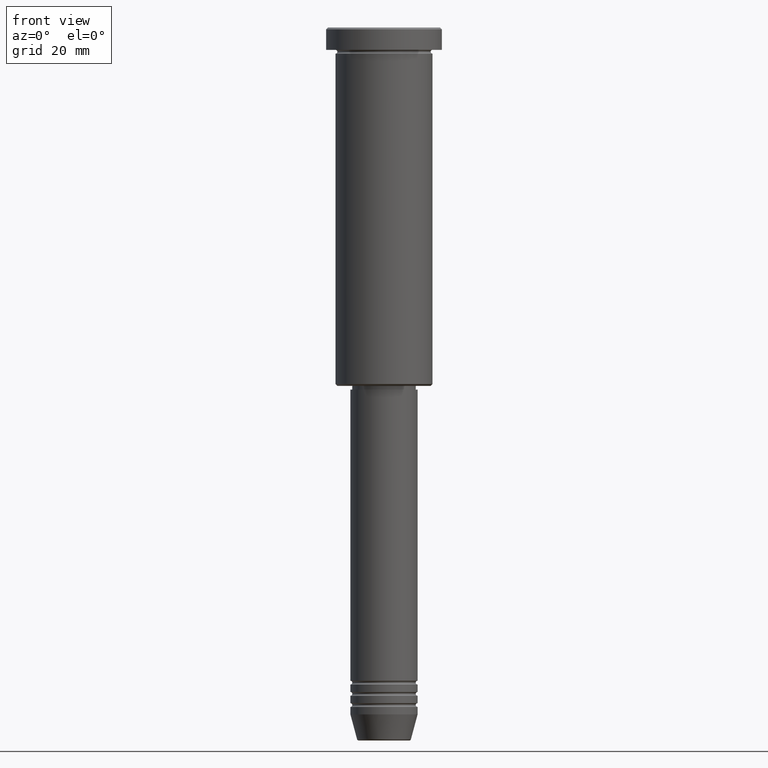
[diagram: clean part render]
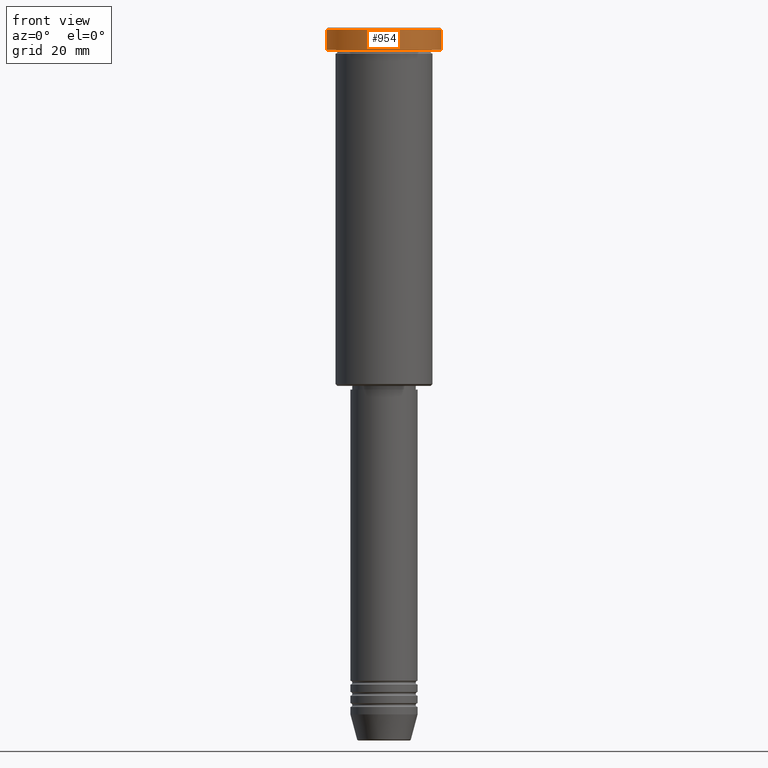
[diagram: same view with one face highlighted and labeled with its STEP entity id]
A machine part, front view. The second image highlights one B-rep face of the part: STEP entity #954.
In plain terms, the highlighted cylindrical surface (partial cylindrical patch) has radius 15.5 mm, axis along (-0, -0, 1).
Its self-contained STEP definition (entity closure, byte-faithful):
#21 = CARTESIAN_POINT ( 'NONE',  ( 15.50000000000000000, 0.000000000000000000, -5.999999999999995559 ) ) ;
#25 = DIRECTION ( 'NONE',  ( -0.000000000000000000, -0.000000000000000000, 1.000000000000000000 ) ) ;
#34 = VECTOR ( 'NONE', #116, 1000.000000000000000 ) ;
#56 = EDGE_CURVE ( 'NONE', #106, #79, #177, .T. ) ;
#79 = VERTEX_POINT ( 'NONE', #302 ) ;
#88 = CIRCLE ( 'NONE', #587, 15.50000000000000000 ) ;
#103 = CARTESIAN_POINT ( 'NONE',  ( 15.50000000000000000, 0.000000000000000000, 0.000000000000000000 ) ) ;
#106 = VERTEX_POINT ( 'NONE', #21 ) ;
#116 = DIRECTION ( 'NONE',  ( -0.000000000000000000, -0.000000000000000000, 1.000000000000000000 ) ) ;
#148 = DIRECTION ( 'NONE',  ( 0.000000000000000000, 0.000000000000000000, -1.000000000000000000 ) ) ;
#172 = EDGE_LOOP ( 'NONE', ( #728, #559, #776, #234 ) ) ;
#177 = LINE ( 'NONE', #103, #956 ) ;
#225 = CARTESIAN_POINT ( 'NONE',  ( -15.50000000000000000, 1.898202538678397557E-15, -0.5000000000000125455 ) ) ;
#234 = ORIENTED_EDGE ( 'NONE', *, *, #235, .T. ) ;
#235 = EDGE_CURVE ( 'NONE', #79, #1017, #88, .T. ) ;
#245 = FACE_OUTER_BOUND ( 'NONE', #172, .T. ) ;
#302 = CARTESIAN_POINT ( 'NONE',  ( 15.50000000000000000, 0.000000000000000000, -0.5000000000000125455 ) ) ;
#303 = AXIS2_PLACEMENT_3D ( 'NONE', #680, #865, #1065 ) ;
#321 = CIRCLE ( 'NONE', #1061, 15.50000000000000000 ) ;
#349 = DIRECTION ( 'NONE',  ( -0.000000000000000000, -0.000000000000000000, 1.000000000000000000 ) ) ;
#379 = VERTEX_POINT ( 'NONE', #749 ) ;
#420 = CYLINDRICAL_SURFACE ( 'NONE', #303, 15.50000000000000000 ) ;
#425 = DIRECTION ( 'NONE',  ( 1.000000000000000000, 0.000000000000000000, 0.000000000000000000 ) ) ;
#439 = DIRECTION ( 'NONE',  ( 1.000000000000000000, 0.000000000000000000, 0.000000000000000000 ) ) ;
#559 = ORIENTED_EDGE ( 'NONE', *, *, #1055, .T. ) ;
#560 = EDGE_CURVE ( 'NONE', #379, #1017, #1095, .T. ) ;
#587 = AXIS2_PLACEMENT_3D ( 'NONE', #863, #148, #425 ) ;
#647 = CARTESIAN_POINT ( 'NONE',  ( -15.50000000000000000, 1.898202538678397557E-15, 0.000000000000000000 ) ) ;
#680 = CARTESIAN_POINT ( 'NONE',  ( 0.000000000000000000, 0.000000000000000000, 0.000000000000000000 ) ) ;
#726 = CARTESIAN_POINT ( 'NONE',  ( 0.000000000000000000, 0.000000000000000000, -5.999999999999995559 ) ) ;
#728 = ORIENTED_EDGE ( 'NONE', *, *, #560, .F. ) ;
#749 = CARTESIAN_POINT ( 'NONE',  ( -15.50000000000000000, 1.898202538678397557E-15, -5.999999999999995559 ) ) ;
#776 = ORIENTED_EDGE ( 'NONE', *, *, #56, .T. ) ;
#863 = CARTESIAN_POINT ( 'NONE',  ( 0.000000000000000000, 0.000000000000000000, -0.5000000000000125455 ) ) ;
#865 = DIRECTION ( 'NONE',  ( -0.000000000000000000, -0.000000000000000000, 1.000000000000000000 ) ) ;
#954 = ADVANCED_FACE ( 'NONE', ( #245 ), #420, .T. ) ;
#956 = VECTOR ( 'NONE', #25, 1000.000000000000000 ) ;
#1017 = VERTEX_POINT ( 'NONE', #225 ) ;
#1055 = EDGE_CURVE ( 'NONE', #379, #106, #321, .T. ) ;
#1061 = AXIS2_PLACEMENT_3D ( 'NONE', #726, #349, #439 ) ;
#1065 = DIRECTION ( 'NONE',  ( 1.000000000000000000, 0.000000000000000000, 0.000000000000000000 ) ) ;
#1095 = LINE ( 'NONE', #647, #34 ) ;